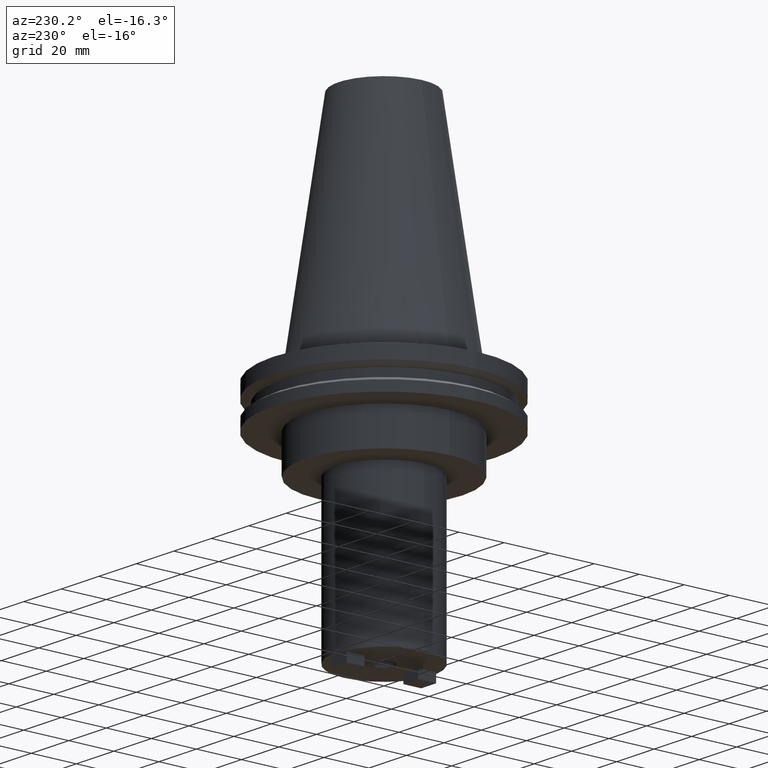
[diagram: clean part render]
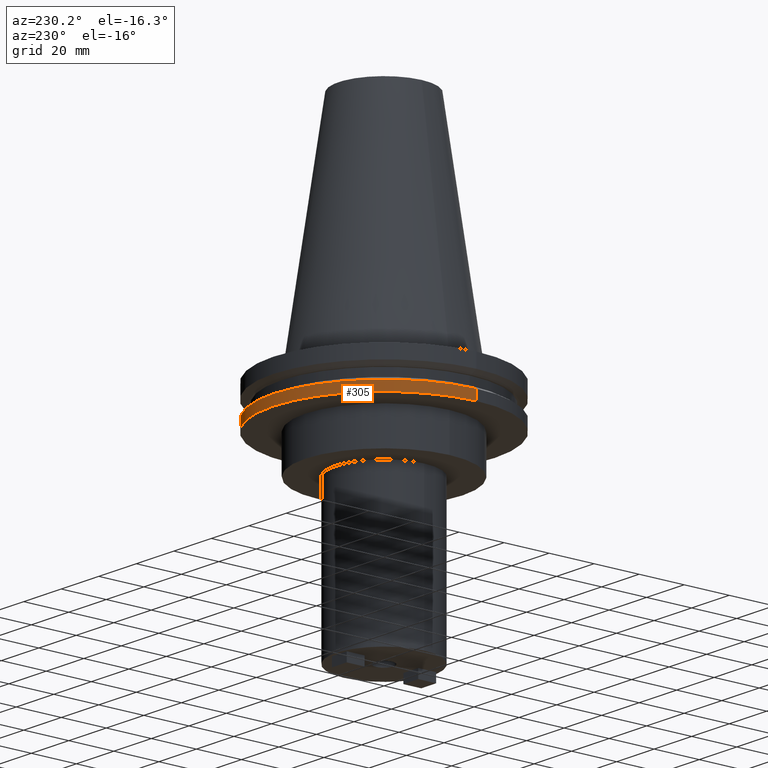
[diagram: same view with one face highlighted and labeled with its STEP entity id]
A machine part, auxiliary view. The second image highlights one B-rep face of the part: STEP entity #305.
In plain terms, the highlighted cylindrical surface (partial cylindrical patch) has radius 49.215 mm, axis along (-0, -0, 1).
Its self-contained STEP definition (entity closure, byte-faithful):
#19 = DIRECTION ( 'NONE',  ( -0.000000000000000000, -0.000000000000000000, 1.000000000000000000 ) ) ;
#106 = CARTESIAN_POINT ( 'NONE',  ( 0.000000000000000000, 0.000000000000000000, 101.5999999999999943 ) ) ;
#112 = FACE_OUTER_BOUND ( 'NONE', #605, .T. ) ;
#125 = ORIENTED_EDGE ( 'NONE', *, *, #1080, .T. ) ;
#152 = ORIENTED_EDGE ( 'NONE', *, *, #394, .T. ) ;
#157 = AXIS2_PLACEMENT_3D ( 'NONE', #377, #541, #715 ) ;
#174 = CARTESIAN_POINT ( 'NONE',  ( 0.000000000000000000, 0.000000000000000000, -19.04999999999999716 ) ) ;
#187 = AXIS2_PLACEMENT_3D ( 'NONE', #106, #373, #460 ) ;
#204 = CIRCLE ( 'NONE', #157, 49.21499999999998920 ) ;
#219 = EDGE_CURVE ( 'NONE', #802, #1063, #204, .T. ) ;
#258 = CARTESIAN_POINT ( 'NONE',  ( -49.21499999999998920, 6.027099222003697037E-15, -19.04999999999999716 ) ) ;
#264 = CARTESIAN_POINT ( 'NONE',  ( -49.21499999999998920, 6.027099222003697037E-15, -14.65761014474876944 ) ) ;
#277 = DIRECTION ( 'NONE',  ( -0.000000000000000000, -0.000000000000000000, 1.000000000000000000 ) ) ;
#305 = ADVANCED_FACE ( 'NONE', ( #112 ), #626, .T. ) ;
#351 = DIRECTION ( 'NONE',  ( 1.000000000000000000, 0.000000000000000000, 0.000000000000000000 ) ) ;
#369 = CIRCLE ( 'NONE', #641, 49.21499999999998920 ) ;
#373 = DIRECTION ( 'NONE',  ( -0.000000000000000000, -0.000000000000000000, 1.000000000000000000 ) ) ;
#377 = CARTESIAN_POINT ( 'NONE',  ( 0.000000000000000000, 0.000000000000000000, -14.65761014474876944 ) ) ;
#394 = EDGE_CURVE ( 'NONE', #1066, #1063, #788, .T. ) ;
#460 = DIRECTION ( 'NONE',  ( 1.000000000000000000, 0.000000000000000000, 0.000000000000000000 ) ) ;
#475 = VECTOR ( 'NONE', #277, 1000.000000000000000 ) ;
#478 = CARTESIAN_POINT ( 'NONE',  ( 49.21499999999998920, 0.000000000000000000, -19.04999999999999716 ) ) ;
#483 = VERTEX_POINT ( 'NONE', #478 ) ;
#486 = CARTESIAN_POINT ( 'NONE',  ( 49.21499999999998920, 0.000000000000000000, 101.5999999999999943 ) ) ;
#541 = DIRECTION ( 'NONE',  ( -0.000000000000000000, -0.000000000000000000, 1.000000000000000000 ) ) ;
#559 = EDGE_CURVE ( 'NONE', #483, #802, #649, .T. ) ;
#605 = EDGE_LOOP ( 'NONE', ( #125, #152, #1029, #731 ) ) ;
#626 = CYLINDRICAL_SURFACE ( 'NONE', #187, 49.21499999999998920 ) ;
#641 = AXIS2_PLACEMENT_3D ( 'NONE', #174, #19, #351 ) ;
#649 = LINE ( 'NONE', #486, #932 ) ;
#715 = DIRECTION ( 'NONE',  ( 1.000000000000000000, 0.000000000000000000, 0.000000000000000000 ) ) ;
#731 = ORIENTED_EDGE ( 'NONE', *, *, #559, .F. ) ;
#741 = DIRECTION ( 'NONE',  ( -0.000000000000000000, -0.000000000000000000, 1.000000000000000000 ) ) ;
#788 = LINE ( 'NONE', #940, #475 ) ;
#802 = VERTEX_POINT ( 'NONE', #1049 ) ;
#932 = VECTOR ( 'NONE', #741, 1000.000000000000000 ) ;
#940 = CARTESIAN_POINT ( 'NONE',  ( -49.21499999999998920, 6.027099222003697037E-15, 101.5999999999999943 ) ) ;
#1029 = ORIENTED_EDGE ( 'NONE', *, *, #219, .F. ) ;
#1049 = CARTESIAN_POINT ( 'NONE',  ( 49.21499999999998920, 0.000000000000000000, -14.65761014474876944 ) ) ;
#1063 = VERTEX_POINT ( 'NONE', #264 ) ;
#1066 = VERTEX_POINT ( 'NONE', #258 ) ;
#1080 = EDGE_CURVE ( 'NONE', #483, #1066, #369, .T. ) ;